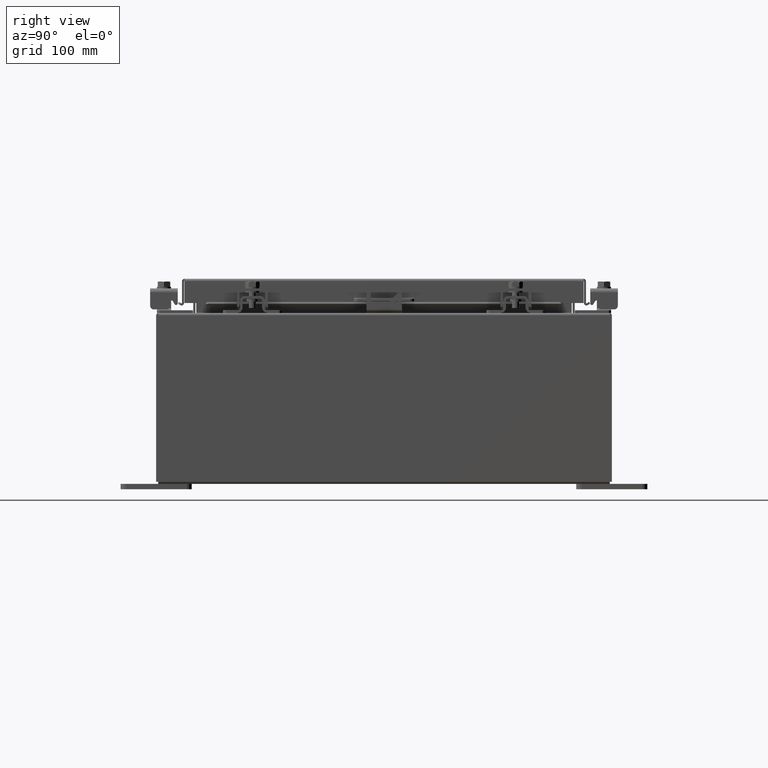
[diagram: clean part render]
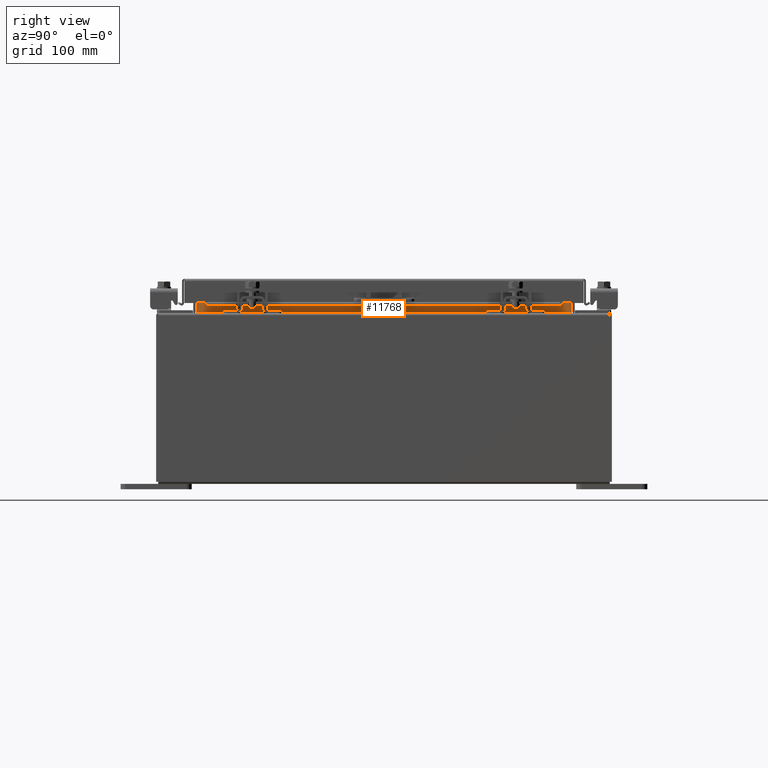
[diagram: same view with one face highlighted and labeled with its STEP entity id]
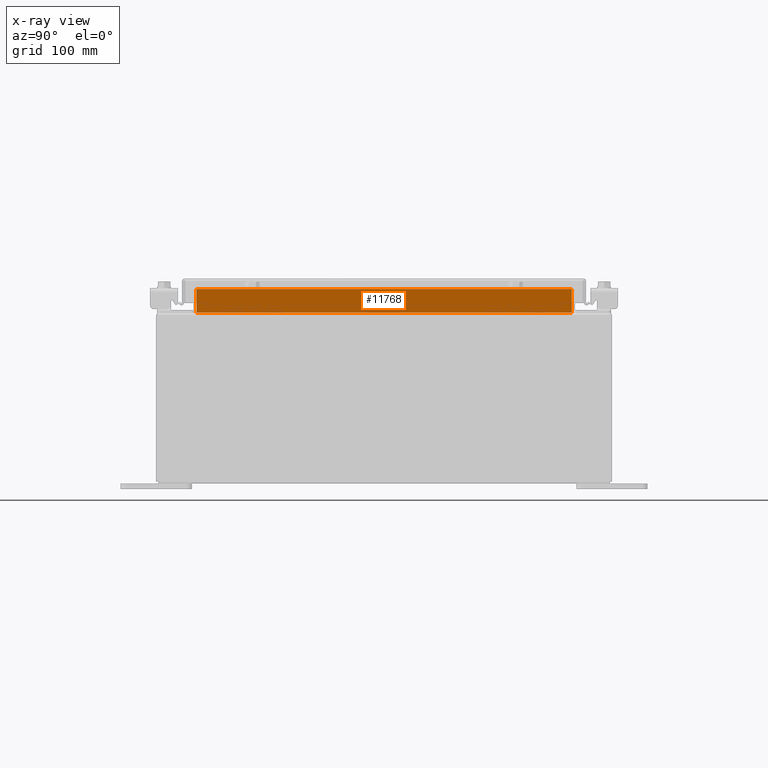
[diagram: x-ray of the same camera — body ghosted, the highlighted face saturated]
A machine part, right view. The second image highlights one B-rep face of the part: STEP entity #11768.
The next image is the same camera in x-ray: the body ghosted, the highlighted face saturated — about 0% of this face is hidden behind the body in this view.
In plain terms, the highlighted planar face has unit normal (1, 0, -0).
Its self-contained STEP definition (entity closure, byte-faithful):
#555 = CARTESIAN_POINT ( 'NONE',  ( 6.699700000000019500, 6.593750000000000000, 5.938300000000011500 ) ) ;
#1647 = LINE ( 'NONE', #18137, #12329 ) ;
#1794 = VERTEX_POINT ( 'NONE', #16468 ) ;
#1839 = CARTESIAN_POINT ( 'NONE',  ( 6.699700000000019500, 6.593750000000000000, 5.925300000000009800 ) ) ;
#3556 = EDGE_CURVE ( 'NONE', #9307, #23026, #12512, .T. ) ;
#4245 = CARTESIAN_POINT ( 'NONE',  ( 6.699700000000022200, -6.593750000000000900, 6.850600000000010700 ) ) ;
#4394 = LINE ( 'NONE', #4245, #7875 ) ;
#4461 = CARTESIAN_POINT ( 'NONE',  ( 6.699700000000022200, -6.593750000000002700, 6.762900000000009900 ) ) ;
#5246 = ORIENTED_EDGE ( 'NONE', *, *, #3556, .F. ) ;
#6106 = DIRECTION ( 'NONE',  ( 8.286174009218617400E-017, -1.000000000000000000, 1.657234801843723500E-016 ) ) ;
#6287 = DIRECTION ( 'NONE',  ( 3.542869979895298400E-015, -0.0000000000000000000, 1.000000000000000000 ) ) ;
#6547 = EDGE_LOOP ( 'NONE', ( #5246, #14390, #14329, #14375 ) ) ;
#7875 = VECTOR ( 'NONE', #6287, 39.37007874015748100 ) ;
#8045 = VECTOR ( 'NONE', #18520, 39.37007874015748100 ) ;
#8537 = CARTESIAN_POINT ( 'NONE',  ( 6.699700000000022200, 6.593750000000000000, 6.762900000000009900 ) ) ;
#9307 = VERTEX_POINT ( 'NONE', #8537 ) ;
#10283 = DIRECTION ( 'NONE',  ( -3.542869979895294000E-015, 0.0000000000000000000, -1.000000000000000000 ) ) ;
#10566 = CARTESIAN_POINT ( 'NONE',  ( 6.699700000000022200, -6.593750000000000900, 6.762900000000009900 ) ) ;
#11768 = ADVANCED_FACE ( 'NONE', ( #25372 ), #20258, .T. ) ;
#11837 = EDGE_CURVE ( 'NONE', #17838, #9307, #19347, .T. ) ;
#12201 = CARTESIAN_POINT ( 'NONE',  ( 6.699699999999998200, 0.0000000000000000000, -2.373616600430449900E-014 ) ) ;
#12329 = VECTOR ( 'NONE', #6106, 39.37007874015748100 ) ;
#12512 = LINE ( 'NONE', #1839, #23242 ) ;
#14329 = ORIENTED_EDGE ( 'NONE', *, *, #21181, .F. ) ;
#14375 = ORIENTED_EDGE ( 'NONE', *, *, #18770, .F. ) ;
#14390 = ORIENTED_EDGE ( 'NONE', *, *, #11837, .F. ) ;
#16468 = CARTESIAN_POINT ( 'NONE',  ( 6.699700000000019500, -6.593750000000000900, 5.938300000000011500 ) ) ;
#17838 = VERTEX_POINT ( 'NONE', #10566 ) ;
#18137 = CARTESIAN_POINT ( 'NONE',  ( 6.699700000000020400, 6.593750000000000000, 5.938300000000010600 ) ) ;
#18520 = DIRECTION ( 'NONE',  ( 0.0000000000000000000, 1.000000000000000000, 0.0000000000000000000 ) ) ;
#18770 = EDGE_CURVE ( 'NONE', #23026, #1794, #1647, .T. ) ;
#19031 = DIRECTION ( 'NONE',  ( -3.542869979895294000E-015, -0.0000000000000000000, -1.000000000000000000 ) ) ;
#19347 = LINE ( 'NONE', #4461, #8045 ) ;
#20258 = PLANE ( 'NONE',  #24777 ) ;
#21181 = EDGE_CURVE ( 'NONE', #1794, #17838, #4394, .T. ) ;
#22299 = DIRECTION ( 'NONE',  ( 1.000000000000000000, 0.0000000000000000000, -3.542869979895294000E-015 ) ) ;
#23026 = VERTEX_POINT ( 'NONE', #555 ) ;
#23242 = VECTOR ( 'NONE', #19031, 39.37007874015748100 ) ;
#24777 = AXIS2_PLACEMENT_3D ( 'NONE', #12201, #22299, #10283 ) ;
#25372 = FACE_OUTER_BOUND ( 'NONE', #6547, .T. ) ;